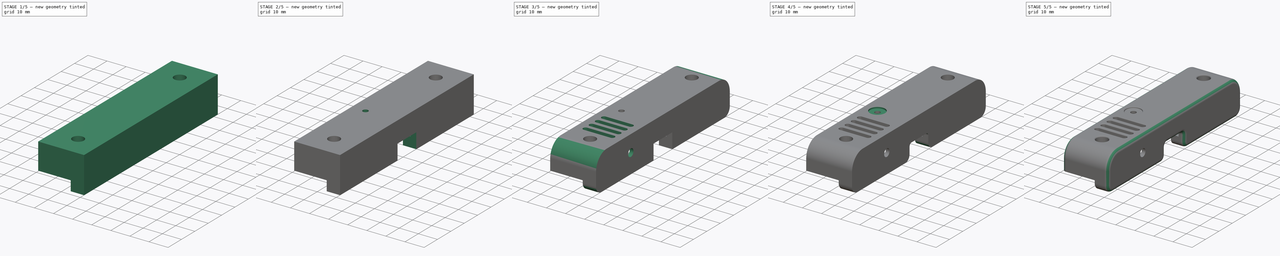
[diagram: build sequence overview — one tinted view per stage of 5, left to right]
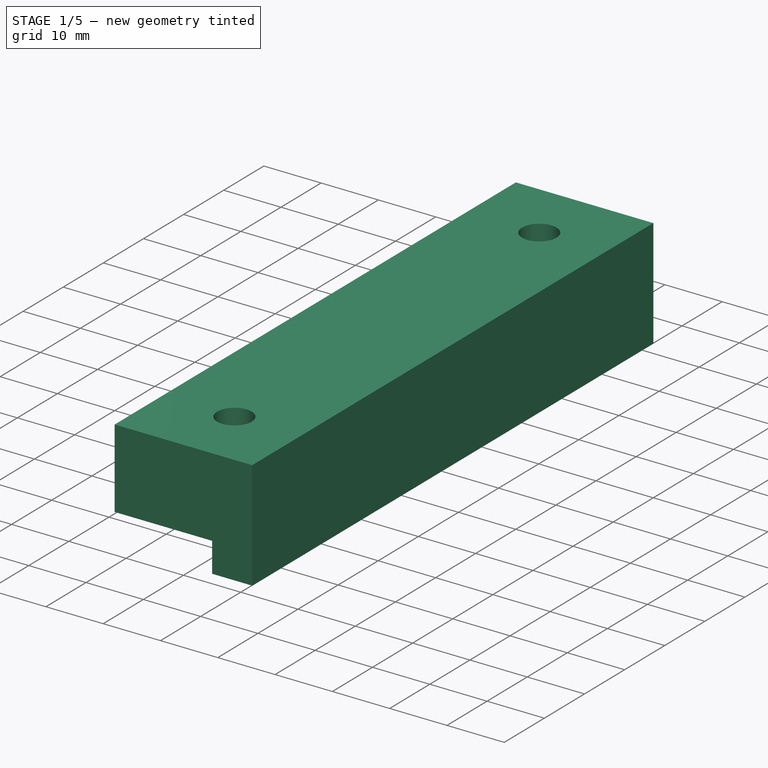
[diagram: stage 1 of 5 — iso view after this stage's code; geometry added in this stage tinted green]
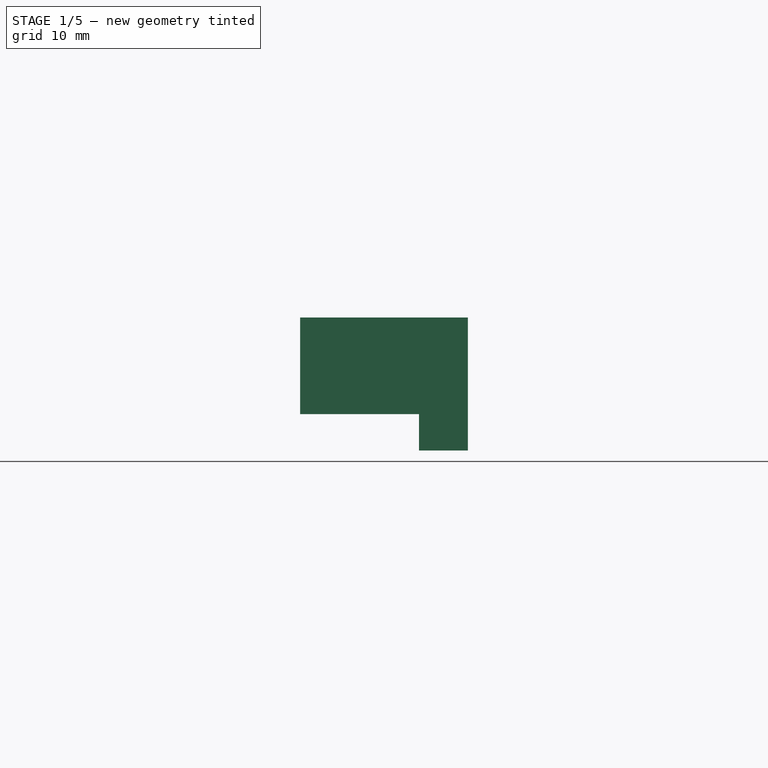
[diagram: stage 1 of 5 — front view after this stage's code; geometry added in this stage tinted green]
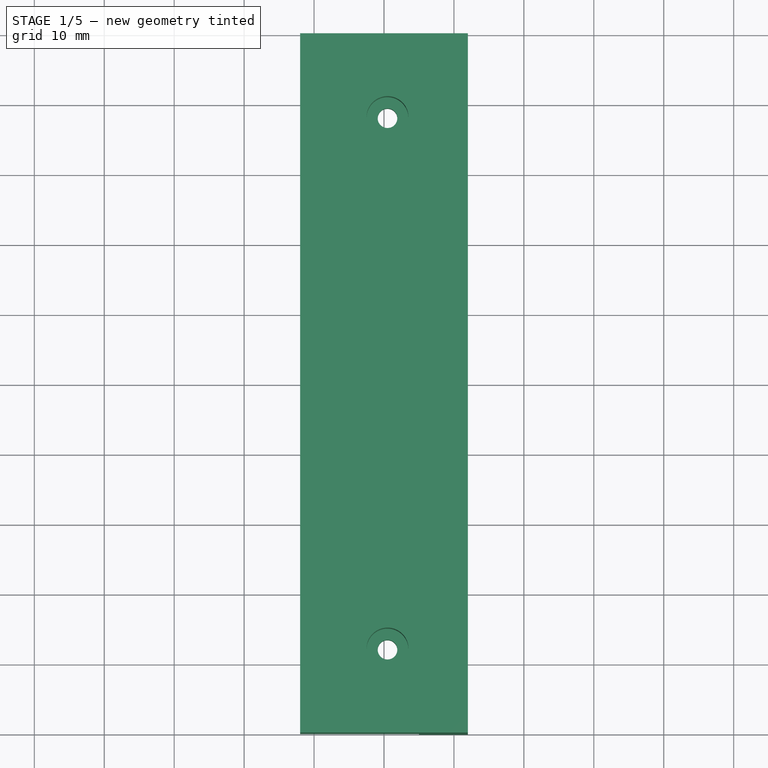
[diagram: stage 1 of 5 — top view after this stage's code; geometry added in this stage tinted green]
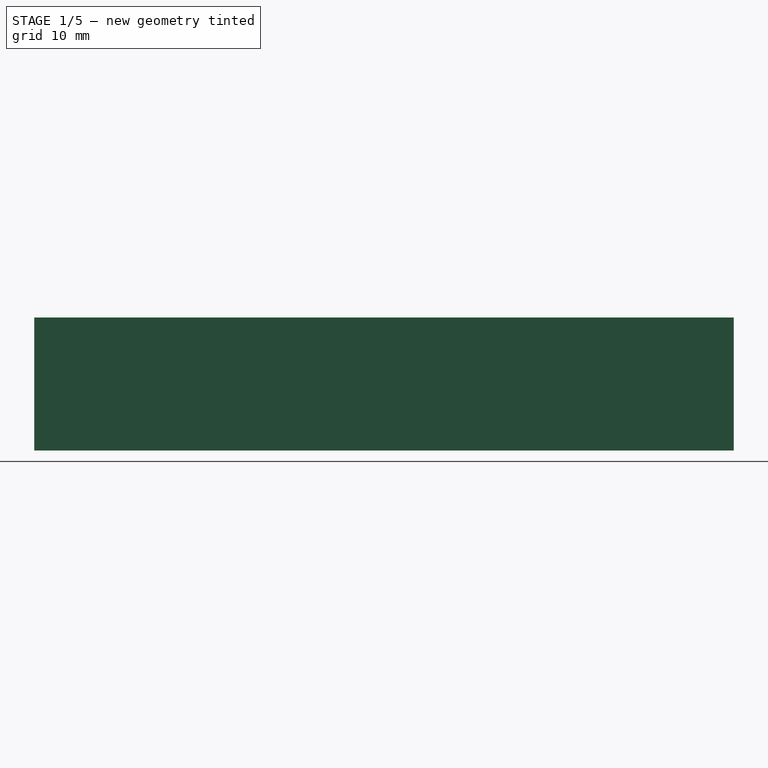
[diagram: stage 1 of 5 — right view after this stage's code; geometry added in this stage tinted green]
FCSTD DOCUMENT  (FreeCAD 0.16RUnknown)
Label: case
Comment: BlueFly vario case for Kobo Mini with speaker and headphone jack.
License: CreativeCommons Attribution
LicenseURL: http://creativecommons.org/licenses/by/4.0/
objects: Sketcher::SketchObject×10, PartDesign::Pocket×9, PartDesign::Fillet×8, PartDesign::Pad×1
note: 38 computed .brp shape members not serialized (recipe doc carries the construction recipe); baked Part::Feature solids carry a one-line shape summary decoded from their .brp

FEATURE [Sketcher::SketchObject] Sketch
  sketch-geometry (4):
    g0: LineSegment StartX=-12 StartY=50 StartZ=0 EndX=12 EndY=50 EndZ=0
    g1: LineSegment StartX=12 StartY=50 StartZ=0 EndX=12 EndY=-50 EndZ=0
    g2: LineSegment StartX=12 StartY=-50 StartZ=0 EndX=-12 EndY=-50 EndZ=0
    g3: LineSegment StartX=-12 StartY=-50 StartZ=0 EndX=-12 EndY=50 EndZ=0
  constraints (11):
    c: Coincident(g0,g1)
    c: Coincident(g1,g2)
    c: Coincident(g2,g3)
    c: Coincident(g3,g0)
    c: Horizontal(g0)
    c: Horizontal(g2)
    c: Vertical(g1)
    c: Vertical(g3)
    c: DistanceX(g0,g0) = 24
    c: DistanceY(g3,g3) = 100
    c: Symmetric(g2,g0,g-1)
FEATURE [PartDesign::Pad] Pad
  Length = 19
  Length2 = 100
  Sketch = -> Sketch
  Type = 0
FEATURE [Sketcher::SketchObject] Sketch001
  ExternalGeometry = -> [Pad]
  Placement = pos=(0,-50,0) rot=(1,0,0;1.5708rad)
  Support = -> Pad [Face3]
  sketch-geometry (4):
    g0: LineSegment StartX=-12 StartY=0 StartZ=0 EndX=5 EndY=0 EndZ=0
    g1: LineSegment StartX=5 StartY=0 StartZ=0 EndX=5 EndY=5.2 EndZ=0
    g2: LineSegment StartX=5 StartY=5.2 StartZ=0 EndX=-12 EndY=5.2 EndZ=0
    g3: LineSegment StartX=-12 StartY=5.2 StartZ=0 EndX=-12 EndY=0 EndZ=0
  constraints (11):
    c: Coincident(g0,g1)
    c: Coincident(g1,g2)
    c: Coincident(g2,g3)
    c: Coincident(g3,g0)
    c: Horizontal(g0)
    c: Horizontal(g2)
    c: Vertical(g1)
    c: Vertical(g3)
    c: Coincident(g0,g-3)
    c: DistanceX(g0,g0) = 17
    c: DistanceY(g3,g3) = 5.2
FEATURE [PartDesign::Pocket] Pocket
  Length = 5
  Sketch = -> Sketch001
  Type = 1
FEATURE [Sketcher::SketchObject] Sketch002
  ExternalGeometry = -> [Pocket]
  Placement = pos=(0,0,19) rot=(0,0,1;0rad)
  Support = -> Pocket [Face6]
  sketch-geometry (2):
    g0: Circle CenterX=0.5 CenterY=38 CenterZ=0 NormalX=0 NormalY=0 NormalZ=1 Radius=1.4
    g1: Circle CenterX=0.5 CenterY=-38 CenterZ=0 NormalX=0 NormalY=0 NormalZ=1 Radius=1.4
  constraints (6):
    c: DistanceX(g-3,g0) = 12.5
    c: DistanceY(g0,g-3) = 12
    c: DistanceY(g-4,g1) = 12
    c: DistanceX(g-4,g1) = 12.5
    c: Radius(g1) = 1.4
    c: Radius(g0) = 1.4
FEATURE [PartDesign::Pocket] Pocket001
  Length = 5
  Sketch = -> Sketch002
  Type = 1
FEATURE [Sketcher::SketchObject] Sketch003
  ExternalGeometry = -> [Pocket001]
  Placement = pos=(0,0,19) rot=(0,0,1;0rad)
  Support = -> Pocket001 [Face6]
  sketch-geometry (2):
    g0: Circle CenterX=0.5 CenterY=-38 CenterZ=0 NormalX=0 NormalY=0 NormalZ=1 Radius=3
    g1: Circle CenterX=0.5 CenterY=38 CenterZ=0 NormalX=0 NormalY=0 NormalZ=1 Radius=3
  constraints (4):
    c: Coincident(g0,g-4)
    c: Coincident(g1,g-3)
    c: Radius(g1) = 3
    c: Radius(g0) = 3
FEATURE [PartDesign::Pocket] Pocket002
  Length = 9
  Sketch = -> Sketch003
  Type = 0
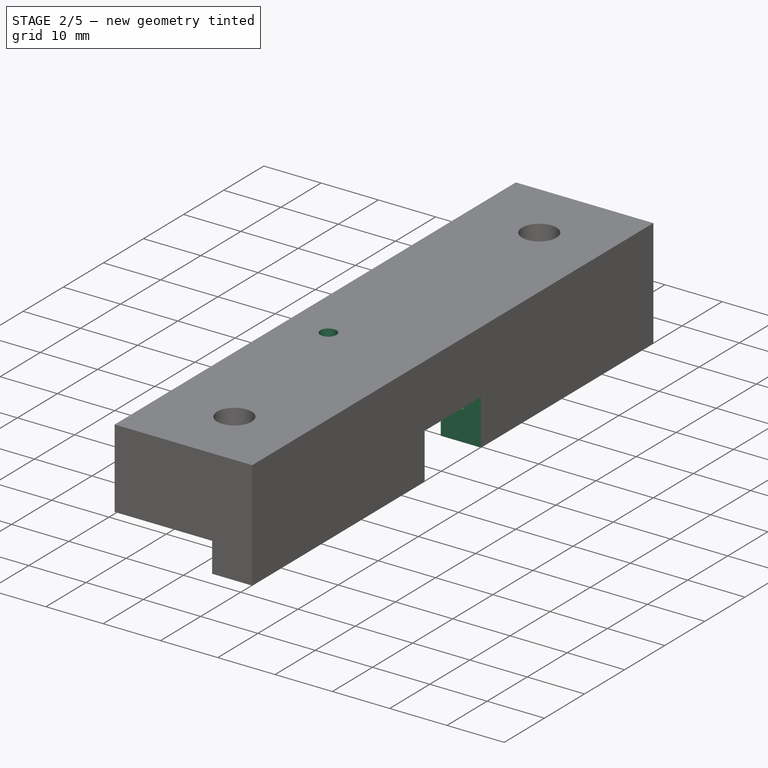
[diagram: stage 2 of 5 — iso view after this stage's code; geometry added in this stage tinted green]
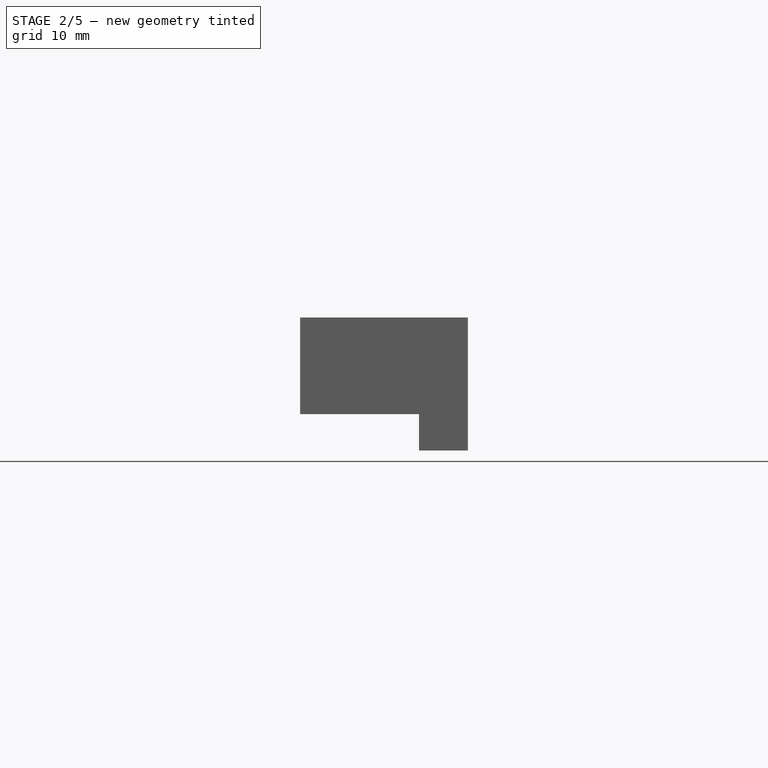
[diagram: stage 2 of 5 — front view after this stage's code; geometry added in this stage tinted green]
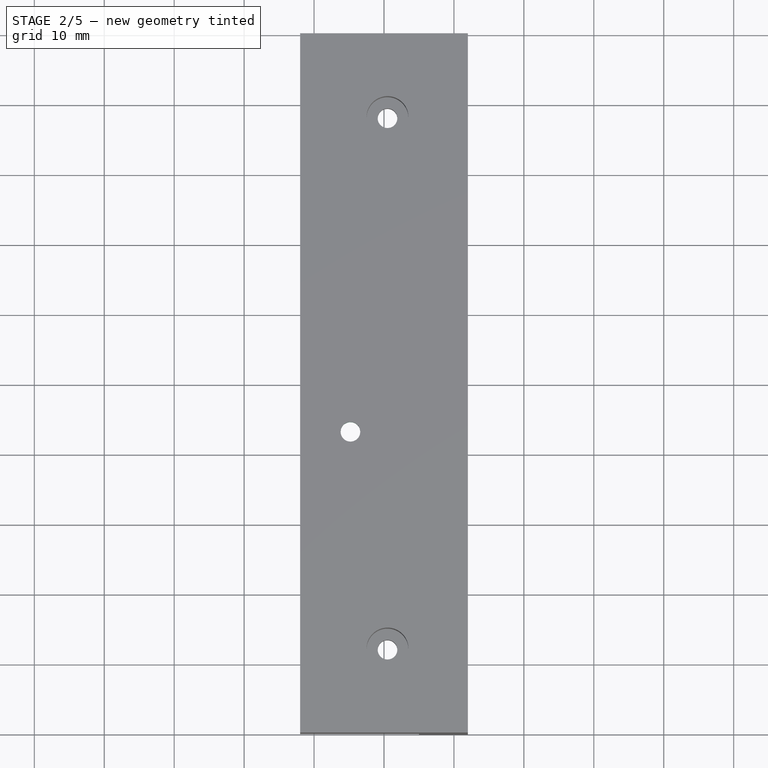
[diagram: stage 2 of 5 — top view after this stage's code; geometry added in this stage tinted green]
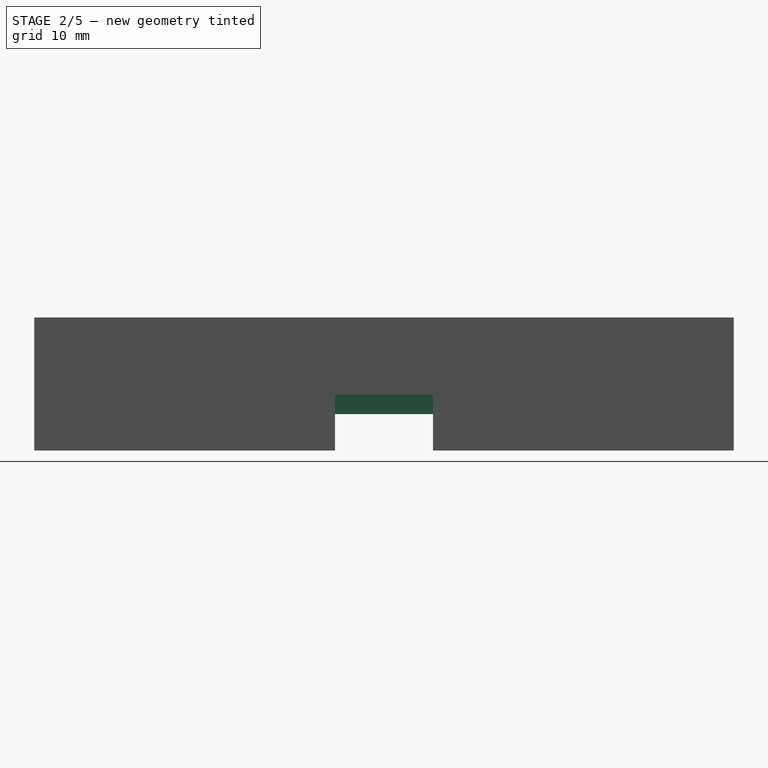
[diagram: stage 2 of 5 — right view after this stage's code; geometry added in this stage tinted green]
FEATURE [Sketcher::SketchObject] Sketch005
  ExternalGeometry = -> [Pocket002]
  Placement = pos=(0,0,5.2) rot=(1,0,0;3.14159rad)
  Support = -> Pocket002 [Face2]
  sketch-geometry (8):
    g0: LineSegment StartX=-10 StartY=34 StartZ=0 EndX=10 EndY=34 EndZ=0
    g1: LineSegment StartX=10 StartY=34 StartZ=0 EndX=10 EndY=9 EndZ=0
    g2: LineSegment StartX=10 StartY=9 StartZ=0 EndX=9 EndY=9 EndZ=0
    g3: LineSegment StartX=9 StartY=9 StartZ=0 EndX=9 EndY=-34 EndZ=0
    g4: LineSegment StartX=9 StartY=-34 StartZ=0 EndX=-9 EndY=-34 EndZ=0
    g5: LineSegment StartX=-9 StartY=-34 StartZ=0 EndX=-9 EndY=9 EndZ=0
    g6: LineSegment StartX=-9 StartY=9 StartZ=0 EndX=-10 EndY=9 EndZ=0
    g7: LineSegment StartX=-10 StartY=9 StartZ=0 EndX=-10 EndY=34 EndZ=0
  constraints (24):
    c: Horizontal(g0)
    c: Coincident(g0,g1)
    c: Vertical(g1)
    c: Coincident(g1,g2)
    c: Coincident(g2,g3)
    c: Vertical(g3)
    c: Coincident(g3,g4)
    c: Horizontal(g4)
    c: Coincident(g4,g5)
    c: Vertical(g5)
    c: Coincident(g5,g6)
    c: Horizontal(g6)
    c: Coincident(g6,g7)
    c: Vertical(g7)
    c: Coincident(g0,g7)
    c: DistanceX(g-3,g0) = 2
    c: DistanceY(g0,g-3) = 16
    c: DistanceY(g-5,g4) = 16
    c: DistanceX(g-5,g4) = 3
    c: DistanceY(g7,g7) = 25
    c: DistanceX(g3,g-6) = 3
    c: DistanceX(g0,g-4) = 2
    c: Horizontal(g2)
    c: Equal(g7,g1)
FEATURE [PartDesign::Pocket] Pocket003
  Length = 12
  Sketch = -> Sketch005
  Type = 0
FEATURE [Sketcher::SketchObject] Sketch006
  Placement = pos=(12,0,0) rot=(0.57735,0.57735,0.57735;2.0944rad)
  Support = -> Pocket003 [Face5]
  sketch-geometry (5):
    g0: LineSegment StartX=0 StartY=0 StartZ=0 EndX=7 EndY=0 EndZ=0
    g1: LineSegment StartX=7 StartY=0 StartZ=0 EndX=7 EndY=8 EndZ=0
    g2: LineSegment StartX=7 StartY=8 StartZ=0 EndX=-7 EndY=8 EndZ=0
    g3: LineSegment StartX=-7 StartY=8 StartZ=0 EndX=-7 EndY=0 EndZ=0
    g4: LineSegment StartX=-7 StartY=0 StartZ=0 EndX=0 EndY=0 EndZ=0
  constraints (14):
    c: Coincident(g-1,g0)
    c: PointOnObject(g0,g-1)
    c: Coincident(g0,g1)
    c: Vertical(g1)
    c: Coincident(g1,g2)
    c: Horizontal(g2)
    c: Coincident(g2,g3)
    c: Vertical(g3)
    c: Coincident(g3,g4)
    c: Coincident(g4,g0)
    c: Horizontal(g4)
    c: DistanceX(g0,g0) = 7
    c: Equal(g0,g4)
    c: DistanceY(g3,g3) = 8
FEATURE [PartDesign::Pocket] Pocket004
  Length = 10
  Sketch = -> Sketch006
  Type = 0
FEATURE [Sketcher::SketchObject] Sketch007
  ExternalGeometry = -> [Pocket004]
  Placement = pos=(0,0,17.2) rot=(1,0,0;3.14159rad)
  Support = -> Pocket004 [Face25]
  sketch-geometry (1):
    g0: Circle CenterX=-4.8 CenterY=7 CenterZ=0 NormalX=0 NormalY=0 NormalZ=1 Radius=1.4
  constraints (3):
    c: DistanceX(g-3,g0) = 4.2
    c: DistanceY(g-3,g0) = 41
    c: Radius(g0) = 1.4
FEATURE [PartDesign::Pocket] Pocket005
  Length = 5
  Sketch = -> Sketch007
  Type = 1
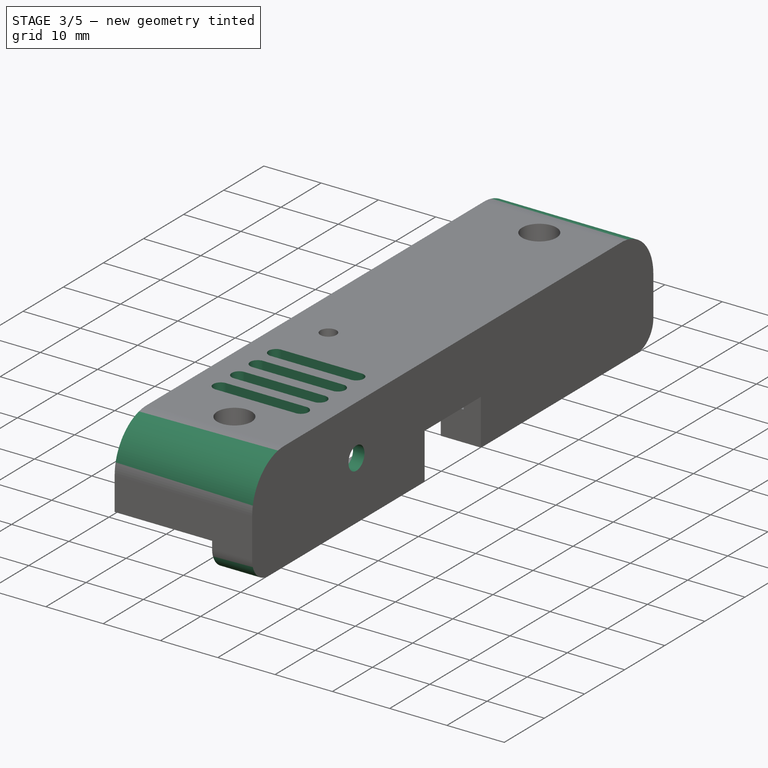
[diagram: stage 3 of 5 — iso view after this stage's code; geometry added in this stage tinted green]
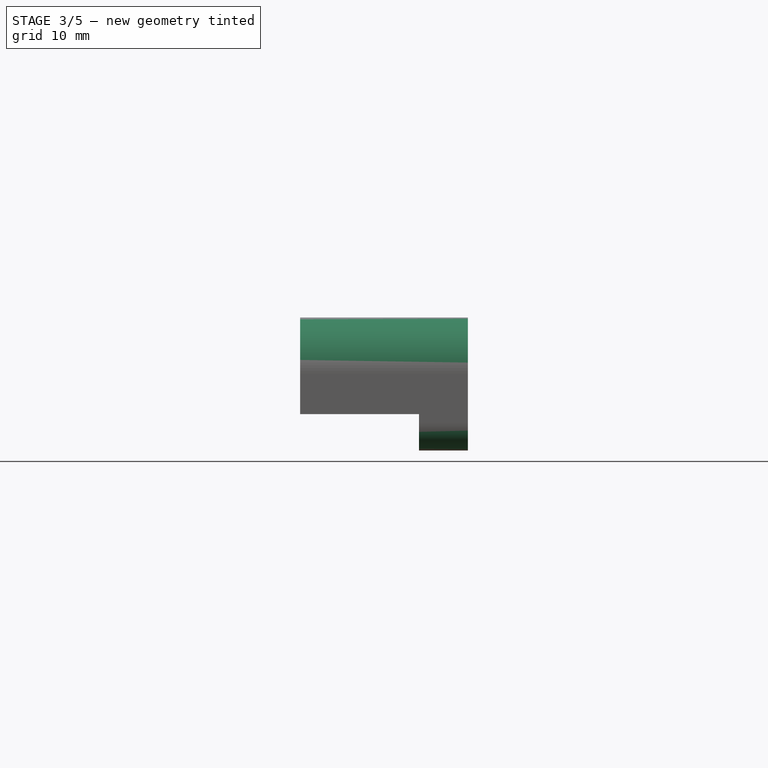
[diagram: stage 3 of 5 — front view after this stage's code; geometry added in this stage tinted green]
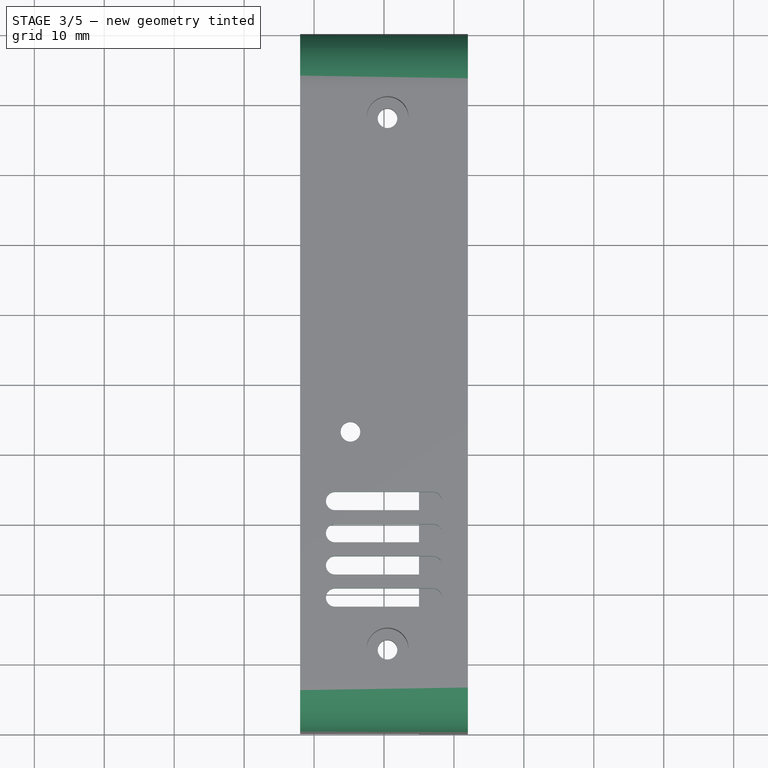
[diagram: stage 3 of 5 — top view after this stage's code; geometry added in this stage tinted green]
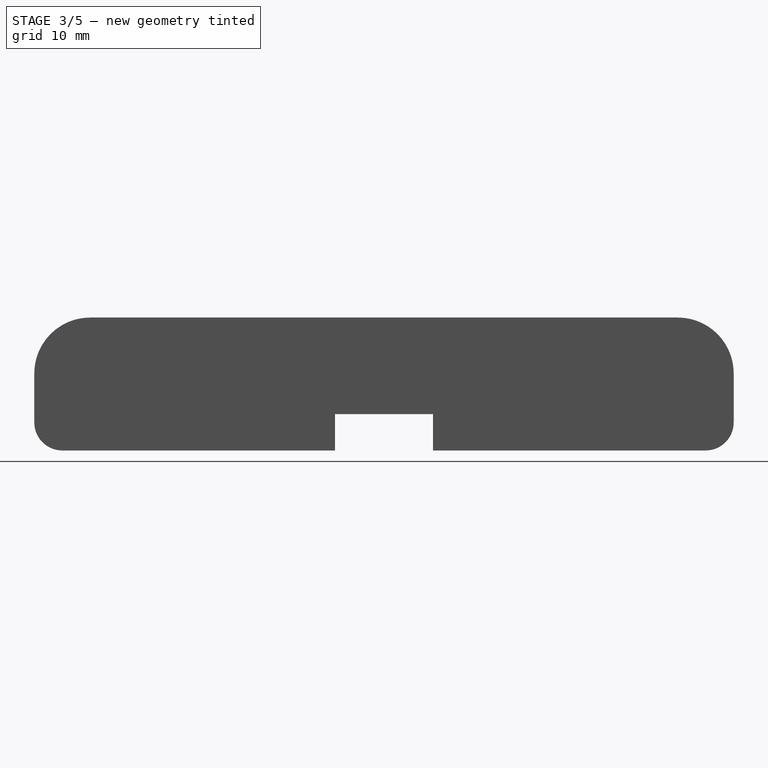
[diagram: stage 3 of 5 — right view after this stage's code; geometry added in this stage tinted green]
FEATURE [Sketcher::SketchObject] Sketch008
  ExternalGeometry = -> [Pocket005]
  Placement = pos=(10,0,0) rot=(0.57735,-0.57735,-0.57735;2.0944rad)
  Support = -> Pocket005 [Face28]
  sketch-geometry (1):
    g0: Circle CenterX=24 CenterY=10.2 CenterZ=0 NormalX=0 NormalY=0 NormalZ=1 Radius=2
  constraints (3):
    c: DistanceY(g0,g-3) = 7
    c: DistanceX(g0,g-3) = 10
    c: Radius(g0) = 2
FEATURE [PartDesign::Pocket] Pocket006
  Length = 5
  Sketch = -> Sketch008
  Type = 1
FEATURE [Sketcher::SketchObject] Sketch009
  ExternalGeometry = -> [Pocket006]
  Placement = pos=(0,0,17.2) rot=(1,0,0;3.14159rad)
  Support = -> Pocket006 [Face27]
  sketch-geometry (22):
    g0: ArcOfCircle CenterX=-7 CenterY=30.7 CenterZ=0 NormalX=0 NormalY=0 NormalZ=1 Radius=1.3 StartAngle=1.5708 EndAngle=4.71239
    g1: ArcOfCircle CenterX=7 CenterY=30.7 CenterZ=0 NormalX=0 NormalY=0 NormalZ=1 Radius=1.3 StartAngle=4.71239 EndAngle=7.85398
    g2: LineSegment StartX=-7 StartY=29.4 StartZ=0 EndX=7 EndY=29.4 EndZ=0
    g3: LineSegment StartX=-7 StartY=32 StartZ=0 EndX=7 EndY=32 EndZ=0
    g4: ArcOfCircle CenterX=7 CenterY=26.1 CenterZ=0 NormalX=0 NormalY=0 NormalZ=1 Radius=1.3 StartAngle=4.71239 EndAngle=7.85398
    g5: ArcOfCircle CenterX=-7 CenterY=26.1 CenterZ=0 NormalX=0 NormalY=0 NormalZ=1 Radius=1.3 StartAngle=1.5708 EndAngle=4.71239
    g6: LineSegment StartX=7 StartY=27.4 StartZ=0 EndX=-7 EndY=27.4 EndZ=0
    g7: LineSegment StartX=7 StartY=24.8 StartZ=0 EndX=-7 EndY=24.8 EndZ=0
    g8: ArcOfCircle CenterX=7 CenterY=21.5 CenterZ=0 NormalX=0 NormalY=0 NormalZ=1 Radius=1.3 StartAngle=4.71239 EndAngle=7.85398
    g9: ArcOfCircle CenterX=-7 CenterY=21.5 CenterZ=0 NormalX=0 NormalY=0 NormalZ=1 Radius=1.3 StartAngle=1.5708 EndAngle=4.71239
    g10: LineSegment StartX=7 StartY=22.8 StartZ=0 EndX=-7 EndY=22.8 EndZ=0
    g11: LineSegment StartX=7 StartY=20.2 StartZ=0 EndX=-7 EndY=20.2 EndZ=0
    g12: ArcOfCircle CenterX=7 CenterY=16.9 CenterZ=0 NormalX=0 NormalY=0 NormalZ=1 Radius=1.3 StartAngle=4.71239 EndAngle=7.85398
    g13: ArcOfCircle CenterX=-7 CenterY=16.9 CenterZ=0 NormalX=0 NormalY=0 NormalZ=1 Radius=1.3 StartAngle=1.5708 EndAngle=4.71239
    g14: LineSegment StartX=7 StartY=18.2 StartZ=0 EndX=-7 EndY=18.2 EndZ=0
    g15: LineSegment StartX=7 StartY=15.6 StartZ=0 EndX=-7 EndY=15.6 EndZ=0
    g16: LineSegment [constr] StartX=-7 StartY=29.4 StartZ=0 EndX=-7 EndY=27.4 EndZ=0
    g17: LineSegment [constr] StartX=-7 StartY=24.8 StartZ=0 EndX=-7 EndY=22.8 EndZ=0
    g18: LineSegment [constr] StartX=-7 StartY=20.2 StartZ=0 EndX=-7 EndY=18.2 EndZ=0
    g19: LineSegment [constr] StartX=7 StartY=29.4 StartZ=0 EndX=7 EndY=27.4 EndZ=0
    g20: LineSegment [constr] StartX=7 StartY=24.8 StartZ=0 EndX=7 EndY=22.8 EndZ=0
    g21: LineSegment [constr] StartX=7 StartY=20.2 StartZ=0 EndX=7 EndY=18.2 EndZ=0
  constraints (52):
    c: Tangent(g0,g3) = 1.5708
    c: Tangent(g0,g2) = -1.5708
    c: Tangent(g2,g1) = -1.5708
    c: Tangent(g3,g1) = 1.5708
    c: Horizontal(g2)
    c: Equal(g0,g1)
    c: Radius(g0) = 1.3
    c: DistanceY(g0,g-4) = 2
    c: DistanceX(g-4,g0) = 3
    c: DistanceX(g1,g-3) = 3
    c: Tangent(g4,g7) = 1.5708
    c: Tangent(g4,g6) = -1.5708
    c: Tangent(g6,g5) = -1.5708
    c: Tangent(g7,g5) = 1.5708
    c: Horizontal(g6)
    c: Equal(g4,g5)
    c: Tangent(g8,g11) = 1.5708
    c: Tangent(g8,g10) = -1.5708
    c: Tangent(g10,g9) = -1.5708
    c: Tangent(g11,g9) = 1.5708
    c: Horizontal(g10)
    c: Equal(g8,g9)
    c: Tangent(g12,g15) = 1.5708
    c: Tangent(g12,g14) = -1.5708
    c: Tangent(g14,g13) = -1.5708
    c: Tangent(g15,g13) = 1.5708
    c: Horizontal(g14)
    c: Equal(g12,g13)
    c: Equal(g5,g0)
    c: Equal(g9,g5)
    c: Equal(g13,g9)
    c: DistanceY(g5,g0) = 2
    c: Coincident(g16,g0)
    c: Vertical(g16)
    c: Coincident(g17,g5)
    c: Coincident(g17,g9)
    c: Vertical(g17)
    c: Coincident(g18,g13)
    c: Vertical(g18)
    c: Coincident(g19,g4)
    c: Vertical(g19)
    c: Vertical(g20)
    c: Coincident(g21,g8)
    c: Coincident(g21,g12)
    c: Vertical(g21)
    c: Equal(g17,g16)
    c: Equal(g18,g17)
    c: Coincident(g9,g18)
    c: Coincident(g16,g5)
    c: Coincident(g8,g20)
    c: Coincident(g20,g4)
    c: Coincident(g19,g1)
FEATURE [PartDesign::Pocket] Pocket007
  Length = 5
  Sketch = -> Sketch009
  Type = 1
FEATURE [PartDesign::Fillet] Fillet
  Base = -> Pocket007 [Edge5,Edge31]
  Radius = 8
FEATURE [PartDesign::Fillet] Fillet001
  Base = -> Fillet [Edge3,Edge64]
  Radius = 4
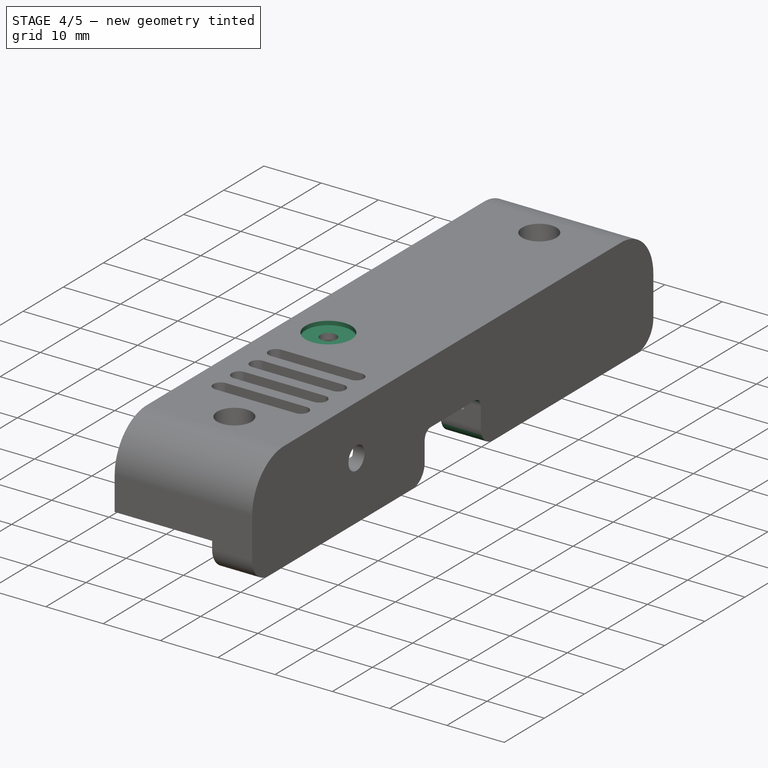
[diagram: stage 4 of 5 — iso view after this stage's code; geometry added in this stage tinted green]
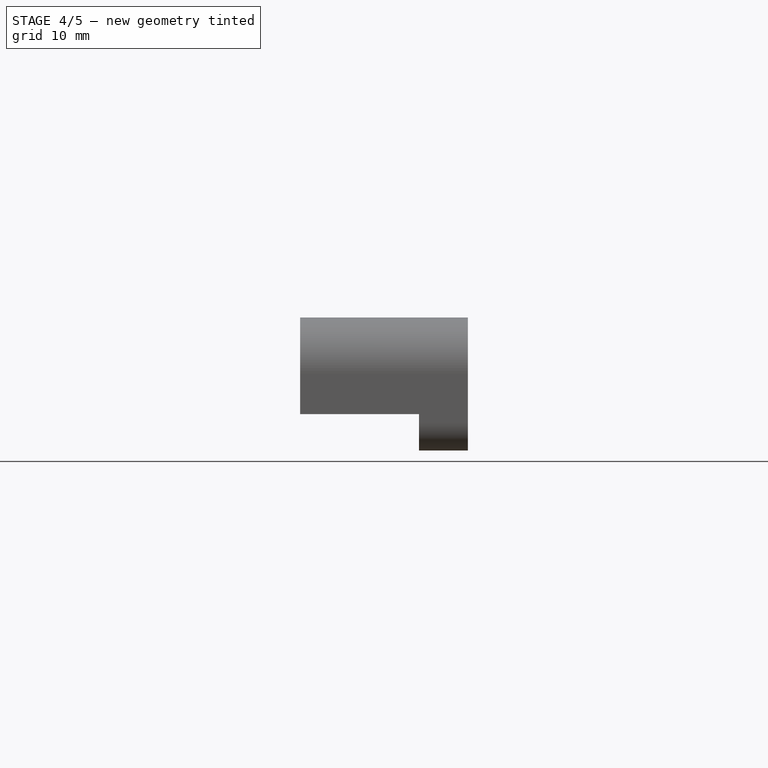
[diagram: stage 4 of 5 — front view after this stage's code; geometry added in this stage tinted green]
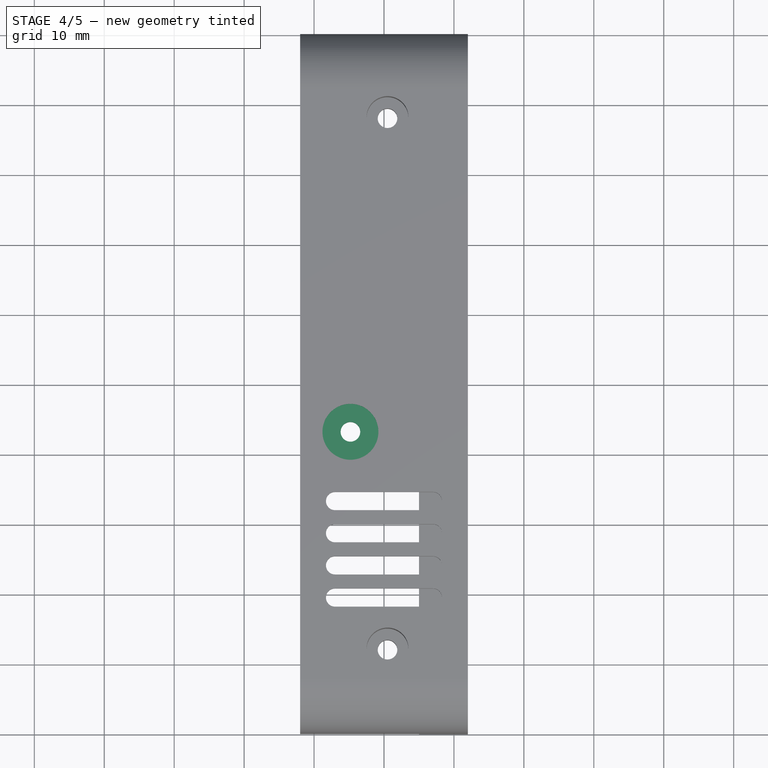
[diagram: stage 4 of 5 — top view after this stage's code; geometry added in this stage tinted green]
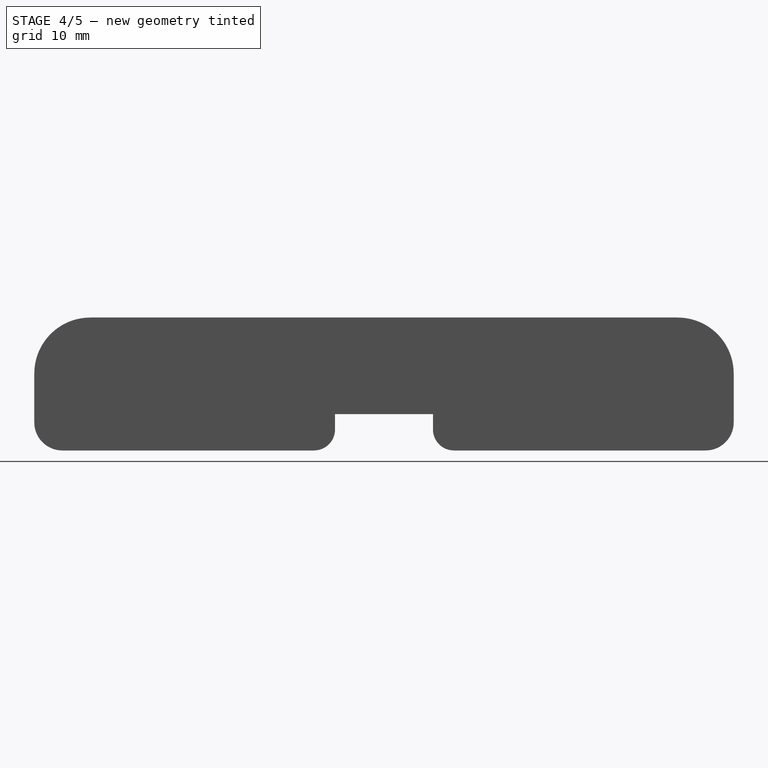
[diagram: stage 4 of 5 — right view after this stage's code; geometry added in this stage tinted green]
FEATURE [Sketcher::SketchObject] Sketch010
  ExternalGeometry = -> [Fillet001]
  Placement = pos=(0,0,19) rot=(0,0,1;0rad)
  Support = -> Fillet001 [Face9]
  sketch-geometry (1):
    g0: Circle CenterX=-4.8 CenterY=-7 CenterZ=0 NormalX=0 NormalY=0 NormalZ=1 Radius=4
  constraints (2):
    c: Radius(g0) = 4
    c: Coincident(g0,g-3)
FEATURE [PartDesign::Pocket] Pocket008
  Length = 0.7
  Sketch = -> Sketch010
  Type = 0
FEATURE [PartDesign::Fillet] Fillet002
  Base = -> Pocket008 [Edge69,Edge40]
  Radius = 3
FEATURE [PartDesign::Fillet] Fillet003
  Base = -> Fillet002 [Edge23,Edge31]
  Radius = 1.5
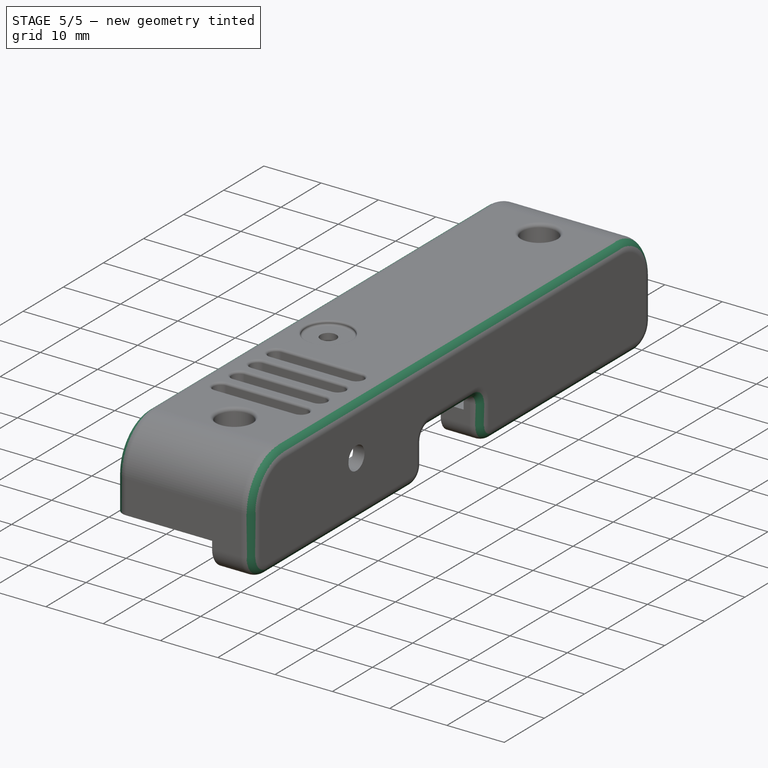
[diagram: stage 5 of 5 — iso view after this stage's code; geometry added in this stage tinted green]
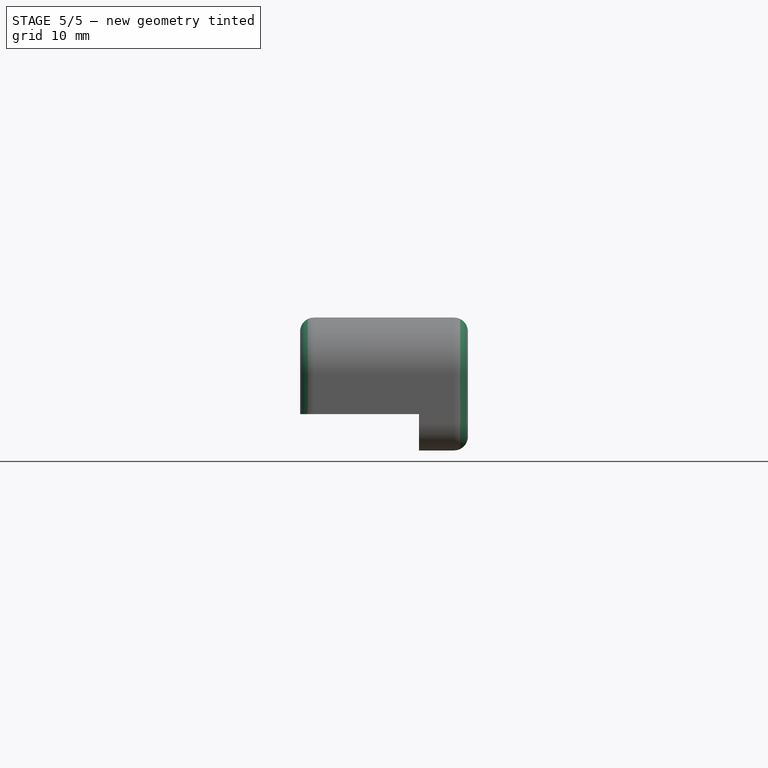
[diagram: stage 5 of 5 — front view after this stage's code; geometry added in this stage tinted green]
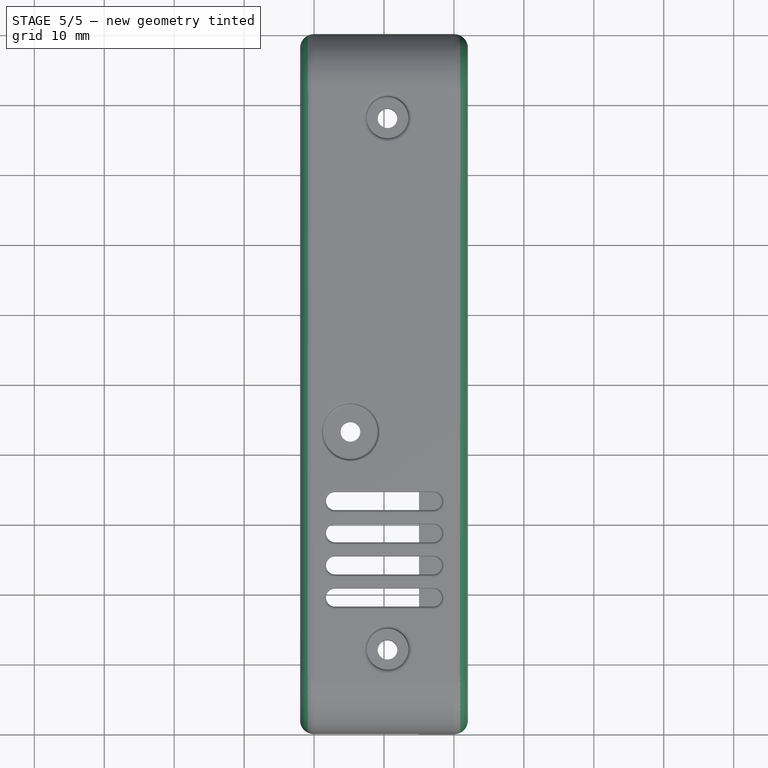
[diagram: stage 5 of 5 — top view after this stage's code; geometry added in this stage tinted green]
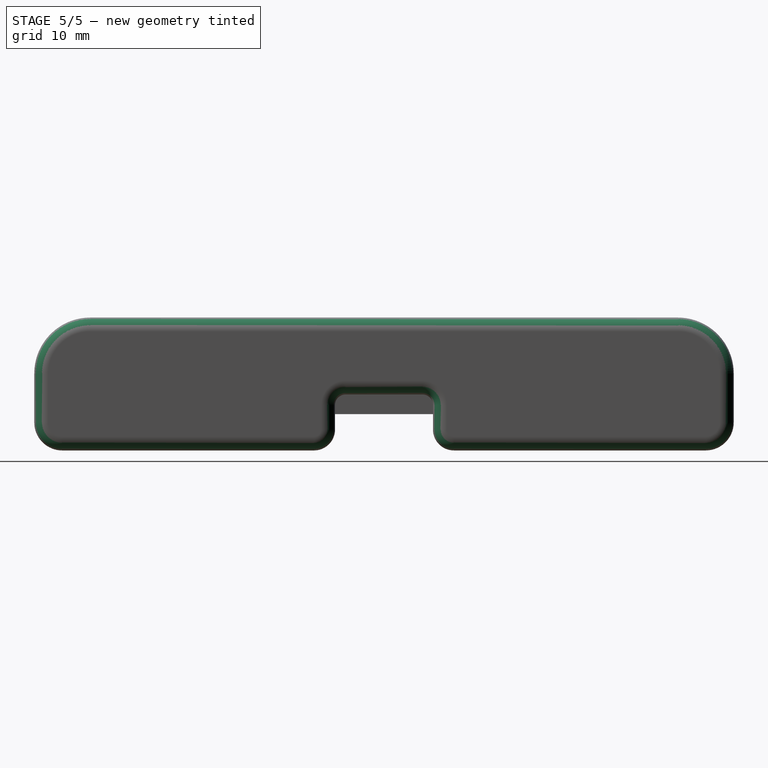
[diagram: stage 5 of 5 — right view after this stage's code; geometry added in this stage tinted green]
FEATURE [PartDesign::Fillet] Fillet004
  Base = -> Fillet003 [Edge16,Edge14,Edge15,Edge13,Edge11,Edge9,Edge7,Edge5,Edge3,Edge1,Edge2,Edge4,Edge6,Edge8,Edge10,Edge12,Edge41,Edge45,Edge49,Edge73,Edge75]
  Radius = 2
FEATURE [PartDesign::Fillet] Fillet005
  Base = -> Fillet004 [Edge65,Edge135]
  Radius = 0.3
FEATURE [PartDesign::Fillet] Fillet006
  Base = -> Fillet005 [Edge23,Edge14]
  Radius = 0.6
FEATURE [PartDesign::Fillet] Fillet007
  Base = -> Fillet006 [Edge17,Edge15,Edge16,Edge18,Edge20,Edge22,Edge21,Edge19,Edge8,Edge9,Edge7,Edge10,Edge12,Edge11,Edge13,Edge14]
  Radius = 0.4
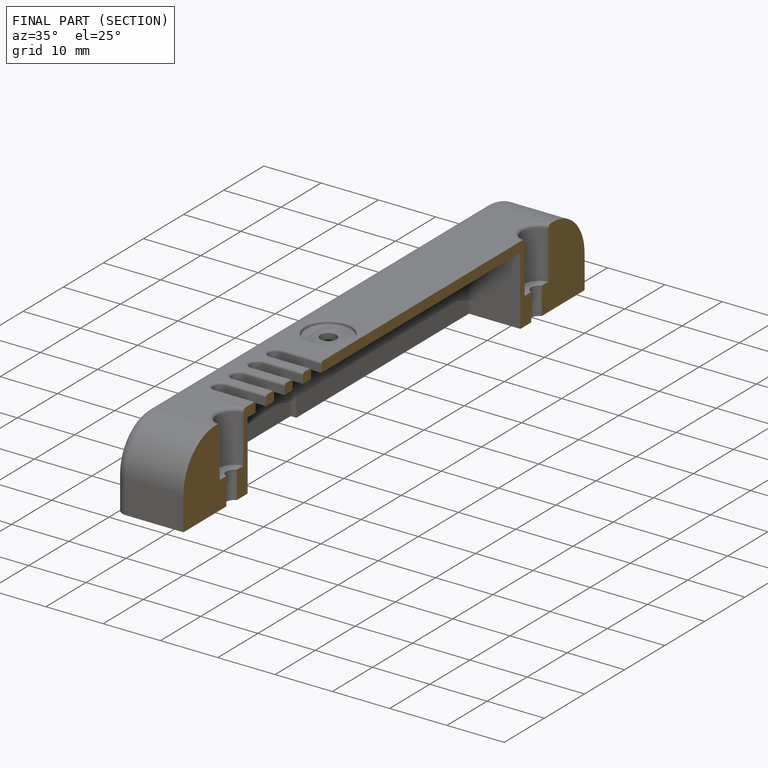
[diagram: finished part — half-section view (interior)]
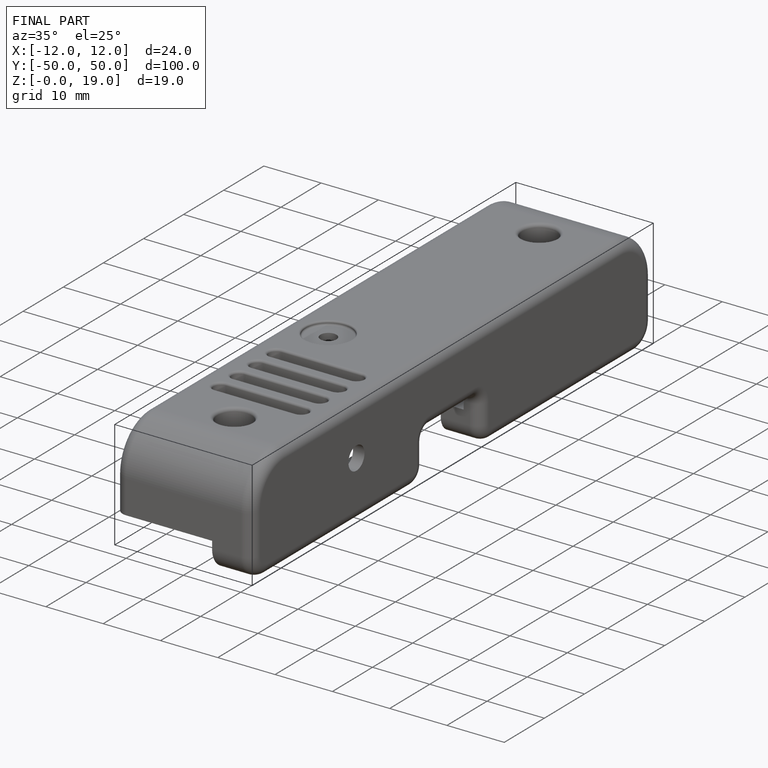
[diagram: finished part — iso view with bounding-box wireframe]
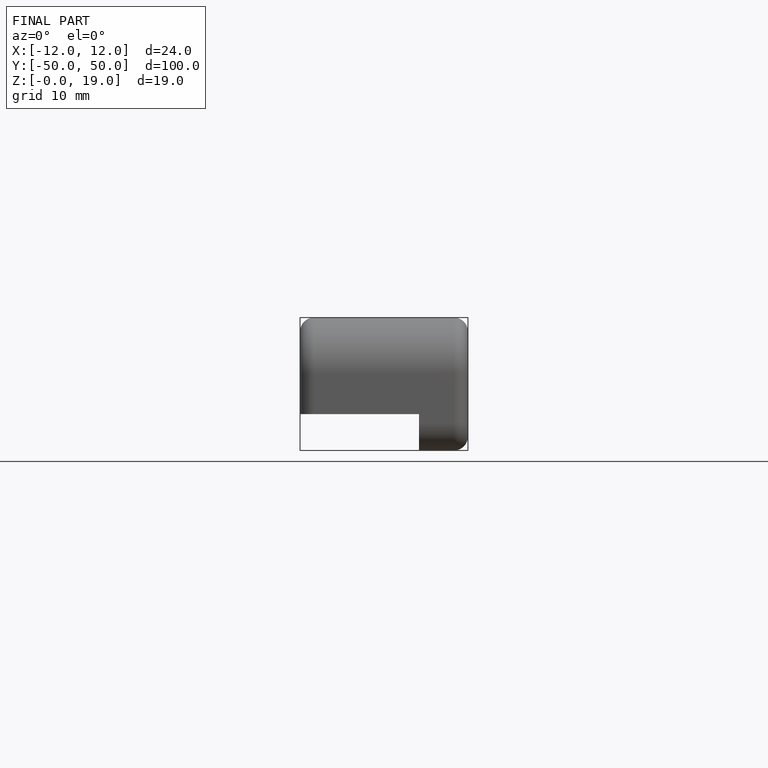
[diagram: finished part — front view with bounding-box wireframe]
